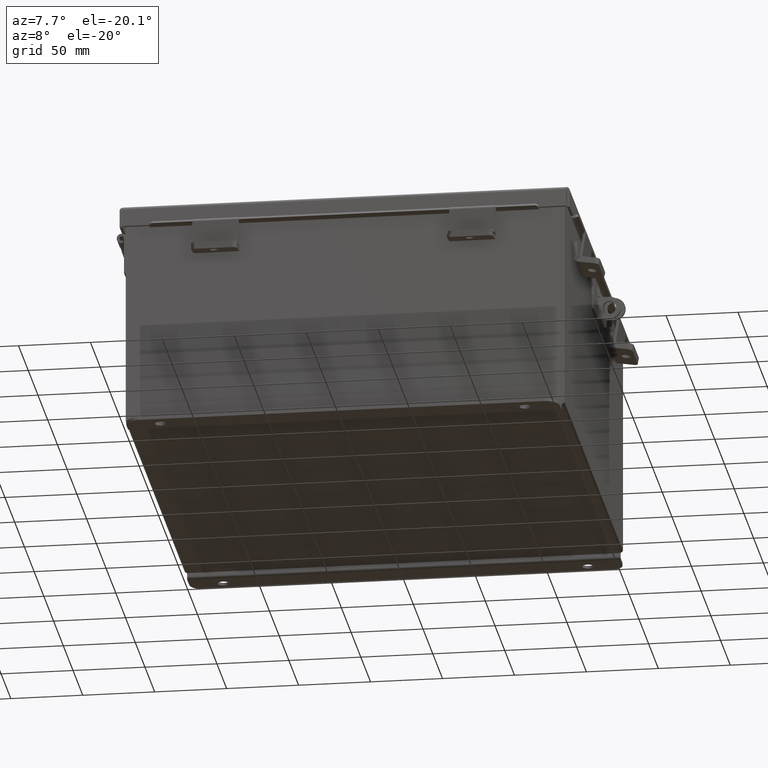
[diagram: clean part render]
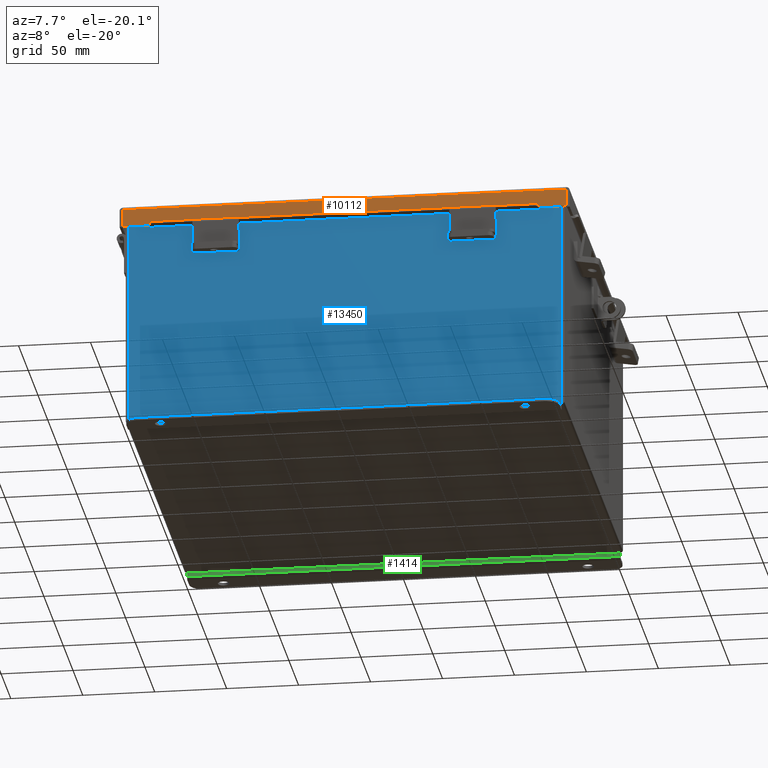
[diagram: same view with three faces highlighted in distinct colors, each labeled with its STEP entity id]
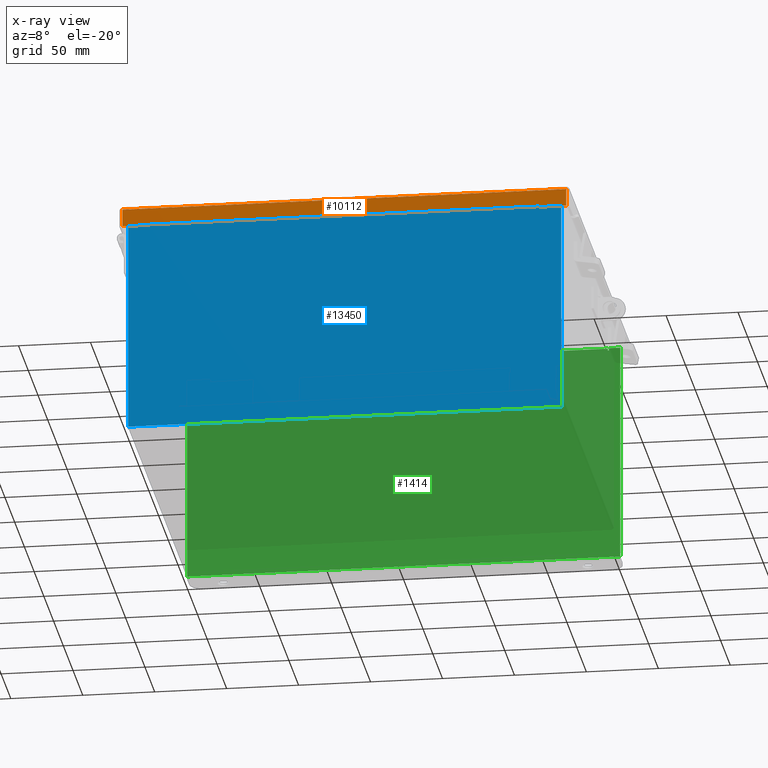
[diagram: x-ray of the same camera — body ghosted, the three highlighted faces saturated]
A machine part, auxiliary view with three faces highlighted in distinct colors.
The next image is the same camera in x-ray (body ghosted, the three faces saturated) — at least one of them is partly hidden behind the body in this view.
Their STEP definitions:

[orange] entity #10112 — the highlighted planar face has unit normal (0, 1, -0).
#125 = EDGE_CURVE ( 'NONE', #9136, #5291, #3240, .T. ) ;
#694 = PLANE ( 'NONE',  #3883 ) ;
#1116 = VECTOR ( 'NONE', #10649, 39.37007874015748100 ) ;
#1562 = DIRECTION ( 'NONE',  ( -1.000000000000000000, 0.0000000000000000000, 5.546899479521349200E-018 ) ) ;
#2277 = CARTESIAN_POINT ( 'NONE',  ( 5.324478932188132100, -6.156250000000002700, 0.4872999999999997900 ) ) ;
#2778 = CARTESIAN_POINT ( 'NONE',  ( 5.324478932188133000, -6.156250000000003600, 0.4717115427318791000 ) ) ;
#3240 = LINE ( 'NONE', #16512, #7323 ) ;
#3883 = AXIS2_PLACEMENT_3D ( 'NONE', #14385, #13070, #4848 ) ;
#4429 = EDGE_CURVE ( 'NONE', #13011, #16090, #17484, .T. ) ;
#4614 = ORIENTED_EDGE ( 'NONE', *, *, #125, .T. ) ;
#4718 = VECTOR ( 'NONE', #16590, 39.37007874015748100 ) ;
#4840 = VECTOR ( 'NONE', #15150, 39.37007874015748100 ) ;
#4848 = DIRECTION ( 'NONE',  ( 0.0000000000000000000, -4.484872552701437000E-015, 1.000000000000000000 ) ) ;
#5145 = LINE ( 'NONE', #2778, #4718 ) ;
#5185 = LINE ( 'NONE', #6574, #1116 ) ;
#5233 = CARTESIAN_POINT ( 'NONE',  ( 5.324478932188133000, -6.156250000000002700, 0.4717115427318791000 ) ) ;
#5291 = VERTEX_POINT ( 'NONE', #2277 ) ;
#5467 = ORIENTED_EDGE ( 'NONE', *, *, #17163, .F. ) ;
#5538 = EDGE_CURVE ( 'NONE', #8407, #5291, #5145, .T. ) ;
#6199 = VECTOR ( 'NONE', #7105, 39.37007874015748100 ) ;
#6258 = CARTESIAN_POINT ( 'NONE',  ( 2.703004116370754100E-018, -6.156250000000002700, 0.4872999999999997900 ) ) ;
#6471 = VECTOR ( 'NONE', #9850, 39.37007874015748100 ) ;
#6574 = CARTESIAN_POINT ( 'NONE',  ( 6.074478932188137400, -6.156250000000000000, -2.787081030857980400E-014 ) ) ;
#6723 = DIRECTION ( 'NONE',  ( 1.000000000000000000, 0.0000000000000000000, 0.0000000000000000000 ) ) ;
#7089 = CARTESIAN_POINT ( 'NONE',  ( -5.324478932188134700, -6.156250000000004400, 0.4872999999999985700 ) ) ;
#7105 = DIRECTION ( 'NONE',  ( -1.000000000000000000, 2.487713722829918300E-032, 1.089533968265403200E-046 ) ) ;
#7323 = VECTOR ( 'NONE', #1562, 39.37007874015748100 ) ;
#7932 = VECTOR ( 'NONE', #6723, 39.37007874015748100 ) ;
#7973 = ORIENTED_EDGE ( 'NONE', *, *, #15308, .F. ) ;
#8322 = VERTEX_POINT ( 'NONE', #11967 ) ;
#8336 = LINE ( 'NONE', #13576, #7932 ) ;
#8407 = VERTEX_POINT ( 'NONE', #5233 ) ;
#8585 = FACE_OUTER_BOUND ( 'NONE', #13466, .T. ) ;
#9136 = VERTEX_POINT ( 'NONE', #17628 ) ;
#9699 = LINE ( 'NONE', #7089, #6471 ) ;
#9785 = EDGE_CURVE ( 'NONE', #8322, #9136, #5185, .T. ) ;
#9849 = LINE ( 'NONE', #15319, #6199 ) ;
#9850 = DIRECTION ( 'NONE',  ( 0.0000000000000000000, 7.009925220121084600E-014, -1.000000000000000000 ) ) ;
#10112 = ADVANCED_FACE ( 'NONE', ( #8585 ), #694, .F. ) ;
#10649 = DIRECTION ( 'NONE',  ( 0.0000000000000000000, -4.484872552701437000E-015, 1.000000000000000000 ) ) ;
#10963 = EDGE_CURVE ( 'NONE', #10975, #8407, #8336, .T. ) ;
#10975 = VERTEX_POINT ( 'NONE', #14980 ) ;
#10977 = CARTESIAN_POINT ( 'NONE',  ( -6.074478932188137400, -6.156250000000000000, -3.350199796867980800E-016 ) ) ;
#11719 = EDGE_CURVE ( 'NONE', #11958, #16090, #12587, .T. ) ;
#11943 = ORIENTED_EDGE ( 'NONE', *, *, #5538, .F. ) ;
#11958 = VERTEX_POINT ( 'NONE', #17017 ) ;
#11967 = CARTESIAN_POINT ( 'NONE',  ( 6.074478932188137400, -6.156250000000000000, 0.01299999999999978100 ) ) ;
#12587 = LINE ( 'NONE', #10977, #4840 ) ;
#13011 = VERTEX_POINT ( 'NONE', #13374 ) ;
#13070 = DIRECTION ( 'NONE',  ( 2.487713722829918300E-032, 1.000000000000000000, 4.484872552701437000E-015 ) ) ;
#13374 = CARTESIAN_POINT ( 'NONE',  ( -5.324478932188134700, -6.156250000000002700, 0.4872999999999997900 ) ) ;
#13466 = EDGE_LOOP ( 'NONE', ( #7973, #14053, #14743, #5467, #15175, #4614, #11943, #15204 ) ) ;
#13576 = CARTESIAN_POINT ( 'NONE',  ( -5.324478932188135600, -6.156250000000003600, 0.4717115427318791000 ) ) ;
#13780 = VECTOR ( 'NONE', #17245, 39.37007874015748100 ) ;
#14053 = ORIENTED_EDGE ( 'NONE', *, *, #4429, .T. ) ;
#14385 = CARTESIAN_POINT ( 'NONE',  ( -1.531498760617168500E-031, -6.156250000000000000, -2.787081030857980400E-014 ) ) ;
#14560 = CARTESIAN_POINT ( 'NONE',  ( -6.074478932188137400, -6.156250000000002700, 0.4872999999999997900 ) ) ;
#14743 = ORIENTED_EDGE ( 'NONE', *, *, #11719, .F. ) ;
#14980 = CARTESIAN_POINT ( 'NONE',  ( -5.324478932188134700, -6.156250000000002700, 0.4717115427318791000 ) ) ;
#15150 = DIRECTION ( 'NONE',  ( -0.0000000000000000000, -4.484872552701437000E-015, 1.000000000000000000 ) ) ;
#15175 = ORIENTED_EDGE ( 'NONE', *, *, #9785, .T. ) ;
#15204 = ORIENTED_EDGE ( 'NONE', *, *, #10963, .F. ) ;
#15308 = EDGE_CURVE ( 'NONE', #13011, #10975, #9699, .T. ) ;
#15319 = CARTESIAN_POINT ( 'NONE',  ( -6.156249999999998200, -6.156250000000000000, 0.01299999999999978100 ) ) ;
#16090 = VERTEX_POINT ( 'NONE', #14560 ) ;
#16512 = CARTESIAN_POINT ( 'NONE',  ( 2.703004116370754100E-018, -6.156250000000002700, 0.4872999999999997900 ) ) ;
#16590 = DIRECTION ( 'NONE',  ( 0.0000000000000000000, 0.0000000000000000000, 1.000000000000000000 ) ) ;
#17017 = CARTESIAN_POINT ( 'NONE',  ( -6.074478932188137400, -6.156250000000000000, 0.01299999999999977400 ) ) ;
#17163 = EDGE_CURVE ( 'NONE', #8322, #11958, #9849, .T. ) ;
#17245 = DIRECTION ( 'NONE',  ( -1.000000000000000000, 0.0000000000000000000, 5.546899479521349200E-018 ) ) ;
#17484 = LINE ( 'NONE', #6258, #13780 ) ;
#17628 = CARTESIAN_POINT ( 'NONE',  ( 6.074478932188137400, -6.156250000000002700, 0.4872999999999997300 ) ) ;

[blue] entity #13450 — the highlighted planar face has unit normal (-0, 1, -0).
#119 = CARTESIAN_POINT ( 'NONE',  ( 5.925299999999999100, 8.741913579725642300E-015, 2.925300000000000000 ) ) ;
#359 = ORIENTED_EDGE ( 'NONE', *, *, #12251, .F. ) ;
#422 = CIRCLE ( 'NONE', #13354, 0.01867500000000003900 ) ;
#578 = CARTESIAN_POINT ( 'NONE',  ( -5.619650000000000000, 0.0000000000000000000, 2.925300000000000000 ) ) ;
#597 = VERTEX_POINT ( 'NONE', #7077 ) ;
#645 = VECTOR ( 'NONE', #7205, 39.37007874015748100 ) ;
#746 = VERTEX_POINT ( 'NONE', #2565 ) ;
#967 = LINE ( 'NONE', #11525, #15168 ) ;
#1083 = LINE ( 'NONE', #16862, #645 ) ;
#1205 = CARTESIAN_POINT ( 'NONE',  ( 5.582299999999999200, 8.741913579725642300E-015, 2.912299999999998800 ) ) ;
#1484 = CARTESIAN_POINT ( 'NONE',  ( 5.582299999999999200, 8.741913579725642300E-015, 2.874949999999998800 ) ) ;
#1546 = VECTOR ( 'NONE', #12695, 39.37007874015748100 ) ;
#1583 = ORIENTED_EDGE ( 'NONE', *, *, #8744, .T. ) ;
#1877 = VERTEX_POINT ( 'NONE', #13345 ) ;
#2127 = VECTOR ( 'NONE', #10024, 39.37007874015748100 ) ;
#2171 = VERTEX_POINT ( 'NONE', #1484 ) ;
#2226 = CARTESIAN_POINT ( 'NONE',  ( 5.582299999999990300, 0.0000000000000000000, 0.0000000000000000000 ) ) ;
#2421 = DIRECTION ( 'NONE',  ( 4.910036603141682400E-031, 1.000000000000000000, -0.0000000000000000000 ) ) ;
#2565 = CARTESIAN_POINT ( 'NONE',  ( -5.925300000000001800, 0.0000000000000000000, 2.925300000000000000 ) ) ;
#2768 = VECTOR ( 'NONE', #15976, 39.37007874015748100 ) ;
#3021 = VERTEX_POINT ( 'NONE', #16956 ) ;
#3145 = AXIS2_PLACEMENT_3D ( 'NONE', #4765, #17183, #8900 ) ;
#4422 = EDGE_LOOP ( 'NONE', ( #12316, #11736, #5808, #10025, #15266, #359, #17826, #12576, #4609, #10297, #1583, #14912 ) ) ;
#4558 = DIRECTION ( 'NONE',  ( 0.0000000000000000000, 0.0000000000000000000, 1.000000000000000000 ) ) ;
#4609 = ORIENTED_EDGE ( 'NONE', *, *, #4699, .T. ) ;
#4699 = EDGE_CURVE ( 'NONE', #597, #16914, #16823, .T. ) ;
#4765 = CARTESIAN_POINT ( 'NONE',  ( 0.0000000000000000000, 0.0000000000000000000, 0.0000000000000000000 ) ) ;
#5021 = VERTEX_POINT ( 'NONE', #11168 ) ;
#5195 = LINE ( 'NONE', #7163, #1546 ) ;
#5401 = LINE ( 'NONE', #9222, #15092 ) ;
#5717 = EDGE_CURVE ( 'NONE', #5021, #17339, #16375, .T. ) ;
#5808 = ORIENTED_EDGE ( 'NONE', *, *, #6573, .F. ) ;
#5857 = LINE ( 'NONE', #6276, #12750 ) ;
#6237 = VECTOR ( 'NONE', #11476, 39.37007874015748100 ) ;
#6276 = CARTESIAN_POINT ( 'NONE',  ( -5.925300000000001800, -8.741913579725642300E-015, -3.099299999999999900 ) ) ;
#6573 = EDGE_CURVE ( 'NONE', #11004, #3021, #11135, .T. ) ;
#6976 = VERTEX_POINT ( 'NONE', #1205 ) ;
#7077 = CARTESIAN_POINT ( 'NONE',  ( 5.925299999999999100, 8.741913579725642300E-015, 2.925300000000000000 ) ) ;
#7163 = CARTESIAN_POINT ( 'NONE',  ( -5.925300000000001800, 0.0000000000000000000, 2.925300000000000000 ) ) ;
#7205 = DIRECTION ( 'NONE',  ( 1.000000000000000000, 4.910036603141682400E-031, 0.0000000000000000000 ) ) ;
#7504 = DIRECTION ( 'NONE',  ( 0.0000000000000000000, 0.0000000000000000000, -1.000000000000000000 ) ) ;
#7507 = PLANE ( 'NONE',  #3145 ) ;
#8093 = DIRECTION ( 'NONE',  ( 4.910036603141682400E-031, 1.000000000000000000, -0.0000000000000000000 ) ) ;
#8189 = LINE ( 'NONE', #12808, #11872 ) ;
#8744 = EDGE_CURVE ( 'NONE', #10958, #746, #8189, .T. ) ;
#8900 = DIRECTION ( 'NONE',  ( 0.0000000000000000000, 0.0000000000000000000, -1.000000000000000000 ) ) ;
#9077 = CARTESIAN_POINT ( 'NONE',  ( 5.619650000000000000, 8.741913579725642300E-015, 2.925300000000000000 ) ) ;
#9222 = CARTESIAN_POINT ( 'NONE',  ( 5.619649999999928100, 0.0000000000000000000, -1.262113773072889600E-013 ) ) ;
#9487 = FACE_OUTER_BOUND ( 'NONE', #4422, .T. ) ;
#10024 = DIRECTION ( 'NONE',  ( 0.0000000000000000000, 0.0000000000000000000, 1.000000000000000000 ) ) ;
#10025 = ORIENTED_EDGE ( 'NONE', *, *, #11985, .T. ) ;
#10218 = VERTEX_POINT ( 'NONE', #9077 ) ;
#10297 = ORIENTED_EDGE ( 'NONE', *, *, #12887, .F. ) ;
#10439 = DIRECTION ( 'NONE',  ( 1.000000000000000000, 4.910036603141682400E-031, -0.0000000000000000000 ) ) ;
#10632 = DIRECTION ( 'NONE',  ( -2.170286390199955400E-014, -7.888609052210118100E-031, -1.000000000000000000 ) ) ;
#10651 = CARTESIAN_POINT ( 'NONE',  ( 5.600974999999998300, 8.741913579725642300E-015, 2.874949999999998800 ) ) ;
#10958 = VERTEX_POINT ( 'NONE', #16329 ) ;
#11004 = VERTEX_POINT ( 'NONE', #16455 ) ;
#11135 = LINE ( 'NONE', #15805, #14792 ) ;
#11168 = CARTESIAN_POINT ( 'NONE',  ( -5.619650000000000000, 0.0000000000000000000, 2.874949999999998800 ) ) ;
#11476 = DIRECTION ( 'NONE',  ( 0.0000000000000000000, 0.0000000000000000000, -1.000000000000000000 ) ) ;
#11525 = CARTESIAN_POINT ( 'NONE',  ( -5.582300000000000900, 2.185478394931410600E-015, 2.912299999999998800 ) ) ;
#11736 = ORIENTED_EDGE ( 'NONE', *, *, #16283, .F. ) ;
#11872 = VECTOR ( 'NONE', #4558, 39.37007874015748100 ) ;
#11985 = EDGE_CURVE ( 'NONE', #11004, #6976, #967, .T. ) ;
#12027 = DIRECTION ( 'NONE',  ( 0.0000000000000000000, 0.0000000000000000000, -1.000000000000000000 ) ) ;
#12251 = EDGE_CURVE ( 'NONE', #1877, #2171, #15830, .T. ) ;
#12316 = ORIENTED_EDGE ( 'NONE', *, *, #5717, .F. ) ;
#12576 = ORIENTED_EDGE ( 'NONE', *, *, #16558, .T. ) ;
#12695 = DIRECTION ( 'NONE',  ( 1.000000000000000000, 4.910036603141682400E-031, 0.0000000000000000000 ) ) ;
#12750 = VECTOR ( 'NONE', #10439, 39.37007874015748100 ) ;
#12808 = CARTESIAN_POINT ( 'NONE',  ( -5.925300000000001800, 0.0000000000000000000, 2.925300000000000000 ) ) ;
#12887 = EDGE_CURVE ( 'NONE', #10958, #16914, #5857, .T. ) ;
#13345 = CARTESIAN_POINT ( 'NONE',  ( 5.619649999999998300, 8.741913579725642300E-015, 2.874949999999998800 ) ) ;
#13354 = AXIS2_PLACEMENT_3D ( 'NONE', #16397, #8093, #17781 ) ;
#13450 = ADVANCED_FACE ( 'NONE', ( #9487 ), #7507, .F. ) ;
#14792 = VECTOR ( 'NONE', #7504, 39.37007874015748100 ) ;
#14912 = ORIENTED_EDGE ( 'NONE', *, *, #15368, .T. ) ;
#15092 = VECTOR ( 'NONE', #10632, 39.37007874015748100 ) ;
#15168 = VECTOR ( 'NONE', #15688, 39.37007874015748100 ) ;
#15266 = ORIENTED_EDGE ( 'NONE', *, *, #17450, .F. ) ;
#15368 = EDGE_CURVE ( 'NONE', #746, #17339, #5195, .T. ) ;
#15529 = CARTESIAN_POINT ( 'NONE',  ( -5.619650000000008900, 0.0000000000000000000, 0.0000000000000000000 ) ) ;
#15681 = EDGE_CURVE ( 'NONE', #10218, #1877, #5401, .T. ) ;
#15688 = DIRECTION ( 'NONE',  ( 1.000000000000000000, 4.910036603141682400E-031, -0.0000000000000000000 ) ) ;
#15695 = AXIS2_PLACEMENT_3D ( 'NONE', #10651, #2421, #12027 ) ;
#15805 = CARTESIAN_POINT ( 'NONE',  ( -5.582300000000008900, 0.0000000000000000000, 0.0000000000000000000 ) ) ;
#15830 = CIRCLE ( 'NONE', #15695, 0.01867500000000003900 ) ;
#15976 = DIRECTION ( 'NONE',  ( 0.0000000000000000000, 0.0000000000000000000, 1.000000000000000000 ) ) ;
#16283 = EDGE_CURVE ( 'NONE', #3021, #5021, #422, .T. ) ;
#16329 = CARTESIAN_POINT ( 'NONE',  ( -5.925300000000000000, -8.741913579725642300E-015, -3.099299999999999900 ) ) ;
#16375 = LINE ( 'NONE', #15529, #2127 ) ;
#16397 = CARTESIAN_POINT ( 'NONE',  ( -5.600975000000000000, 0.0000000000000000000, 2.874949999999998800 ) ) ;
#16455 = CARTESIAN_POINT ( 'NONE',  ( -5.582300000000000000, 2.185478394931410600E-015, 2.912299999999998800 ) ) ;
#16558 = EDGE_CURVE ( 'NONE', #10218, #597, #1083, .T. ) ;
#16823 = LINE ( 'NONE', #119, #6237 ) ;
#16862 = CARTESIAN_POINT ( 'NONE',  ( -5.925300000000001800, 0.0000000000000000000, 2.925300000000000000 ) ) ;
#16914 = VERTEX_POINT ( 'NONE', #17575 ) ;
#16956 = CARTESIAN_POINT ( 'NONE',  ( -5.582300000000000000, 0.0000000000000000000, 2.874949999999998800 ) ) ;
#16993 = LINE ( 'NONE', #2226, #2768 ) ;
#17183 = DIRECTION ( 'NONE',  ( -4.910036603141682400E-031, -1.000000000000000000, -0.0000000000000000000 ) ) ;
#17339 = VERTEX_POINT ( 'NONE', #578 ) ;
#17450 = EDGE_CURVE ( 'NONE', #2171, #6976, #16993, .T. ) ;
#17575 = CARTESIAN_POINT ( 'NONE',  ( 5.925299999999999100, 0.0000000000000000000, -3.099300000000004400 ) ) ;
#17781 = DIRECTION ( 'NONE',  ( 0.0000000000000000000, 0.0000000000000000000, -1.000000000000000000 ) ) ;
#17826 = ORIENTED_EDGE ( 'NONE', *, *, #15681, .F. ) ;

[green] entity #1414 — the highlighted planar face has unit normal (0, -1, 0).
#201 = CARTESIAN_POINT ( 'NONE',  ( 5.925299999999999100, -0.07470000000000015500, -3.099299999999999900 ) ) ;
#350 = AXIS2_PLACEMENT_3D ( 'NONE', #13385, #5144, #14769 ) ;
#541 = DIRECTION ( 'NONE',  ( 0.0000000000000000000, 0.0000000000000000000, -1.000000000000000000 ) ) ;
#635 = ORIENTED_EDGE ( 'NONE', *, *, #11384, .F. ) ;
#968 = CARTESIAN_POINT ( 'NONE',  ( 5.619650000000000000, -0.07470000000000015500, 2.925300000000000500 ) ) ;
#1035 = VERTEX_POINT ( 'NONE', #201 ) ;
#1236 = EDGE_LOOP ( 'NONE', ( #2899, #12997, #6693, #11510, #10569, #635, #13231, #14527, #3593, #6473, #8402, #12168 ) ) ;
#1300 = LINE ( 'NONE', #16257, #8565 ) ;
#1414 = ADVANCED_FACE ( 'NONE', ( #10523 ), #13732, .T. ) ;
#1985 = VERTEX_POINT ( 'NONE', #15741 ) ;
#2003 = EDGE_CURVE ( 'NONE', #12430, #6487, #14814, .T. ) ;
#2037 = CARTESIAN_POINT ( 'NONE',  ( -5.582300000000000000, -0.07470000000000015500, 2.874949999999999200 ) ) ;
#2097 = VECTOR ( 'NONE', #2340, 39.37007874015748100 ) ;
#2340 = DIRECTION ( 'NONE',  ( 0.0000000000000000000, 0.0000000000000000000, -1.000000000000000000 ) ) ;
#2370 = VECTOR ( 'NONE', #15615, 39.37007874015748100 ) ;
#2537 = LINE ( 'NONE', #4597, #6181 ) ;
#2647 = EDGE_CURVE ( 'NONE', #4793, #5225, #2537, .T. ) ;
#2899 = ORIENTED_EDGE ( 'NONE', *, *, #16882, .F. ) ;
#2926 = CARTESIAN_POINT ( 'NONE',  ( 5.582299999999999200, -0.07470000000000015500, 2.874949999999999200 ) ) ;
#3249 = CARTESIAN_POINT ( 'NONE',  ( -5.925300000000001800, -0.07470000000000015500, 2.925300000000000500 ) ) ;
#3262 = VECTOR ( 'NONE', #8272, 39.37007874015748100 ) ;
#3331 = DIRECTION ( 'NONE',  ( -0.0000000000000000000, -0.0000000000000000000, 1.000000000000000000 ) ) ;
#3593 = ORIENTED_EDGE ( 'NONE', *, *, #15477, .F. ) ;
#3884 = CIRCLE ( 'NONE', #12206, 0.01867500000000003900 ) ;
#4050 = DIRECTION ( 'NONE',  ( 2.170286390199955400E-014, -2.272018564740578300E-014, 1.000000000000000000 ) ) ;
#4477 = EDGE_CURVE ( 'NONE', #12430, #1035, #9689, .T. ) ;
#4550 = CARTESIAN_POINT ( 'NONE',  ( -5.619650000000000000, -0.07470000000000015500, 2.874949999999999200 ) ) ;
#4556 = VERTEX_POINT ( 'NONE', #4550 ) ;
#4597 = CARTESIAN_POINT ( 'NONE',  ( 5.619649999999999100, -0.07469999999999797600, 2.874949999999999200 ) ) ;
#4793 = VERTEX_POINT ( 'NONE', #15272 ) ;
#4876 = DIRECTION ( 'NONE',  ( 1.000000000000000000, -0.0000000000000000000, -0.0000000000000000000 ) ) ;
#5131 = LINE ( 'NONE', #6903, #9189 ) ;
#5144 = DIRECTION ( 'NONE',  ( 0.0000000000000000000, -1.000000000000000000, 0.0000000000000000000 ) ) ;
#5225 = VERTEX_POINT ( 'NONE', #968 ) ;
#5332 = DIRECTION ( 'NONE',  ( 0.0000000000000000000, 2.272018564740578300E-014, -1.000000000000000000 ) ) ;
#5333 = EDGE_CURVE ( 'NONE', #14071, #4556, #1300, .T. ) ;
#5979 = EDGE_CURVE ( 'NONE', #5225, #7064, #5131, .T. ) ;
#6029 = LINE ( 'NONE', #14174, #2370 ) ;
#6181 = VECTOR ( 'NONE', #4050, 39.37007874015748100 ) ;
#6473 = ORIENTED_EDGE ( 'NONE', *, *, #6711, .F. ) ;
#6487 = VERTEX_POINT ( 'NONE', #3249 ) ;
#6693 = ORIENTED_EDGE ( 'NONE', *, *, #16708, .F. ) ;
#6711 = EDGE_CURVE ( 'NONE', #15149, #7195, #13073, .T. ) ;
#6903 = CARTESIAN_POINT ( 'NONE',  ( -5.925300000000001800, -0.07470000000000015500, 2.925300000000000500 ) ) ;
#7064 = VERTEX_POINT ( 'NONE', #15141 ) ;
#7195 = VERTEX_POINT ( 'NONE', #2926 ) ;
#7440 = CARTESIAN_POINT ( 'NONE',  ( -5.619650000000000000, -0.07470000000000015500, 2.925300000000000500 ) ) ;
#7447 = DIRECTION ( 'NONE',  ( 0.0000000000000000000, -1.000000000000000000, 0.0000000000000000000 ) ) ;
#7490 = VECTOR ( 'NONE', #3331, 39.37007874015748100 ) ;
#7950 = DIRECTION ( 'NONE',  ( 0.0000000000000000000, -0.0000000000000000000, -1.000000000000000000 ) ) ;
#8117 = CARTESIAN_POINT ( 'NONE',  ( 5.582299999999999200, -0.07470000000000015500, 2.912299999999998300 ) ) ;
#8272 = DIRECTION ( 'NONE',  ( 0.0000000000000000000, 0.0000000000000000000, 1.000000000000000000 ) ) ;
#8312 = EDGE_CURVE ( 'NONE', #16680, #1985, #17503, .T. ) ;
#8402 = ORIENTED_EDGE ( 'NONE', *, *, #15871, .F. ) ;
#8565 = VECTOR ( 'NONE', #5332, 39.37007874015748100 ) ;
#8927 = CARTESIAN_POINT ( 'NONE',  ( -5.925300000000001800, -0.07470000000000015500, 2.925300000000000500 ) ) ;
#9189 = VECTOR ( 'NONE', #16573, 39.37007874015748100 ) ;
#9439 = LINE ( 'NONE', #8927, #12678 ) ;
#9569 = LINE ( 'NONE', #12909, #13237 ) ;
#9689 = LINE ( 'NONE', #15710, #16633 ) ;
#10523 = FACE_OUTER_BOUND ( 'NONE', #1236, .T. ) ;
#10567 = CARTESIAN_POINT ( 'NONE',  ( 5.582299999999999200, -0.07469999999999797600, 2.912299999999998300 ) ) ;
#10569 = ORIENTED_EDGE ( 'NONE', *, *, #4477, .T. ) ;
#11384 = EDGE_CURVE ( 'NONE', #7064, #1035, #9569, .T. ) ;
#11510 = ORIENTED_EDGE ( 'NONE', *, *, #2003, .F. ) ;
#11590 = DIRECTION ( 'NONE',  ( 0.0000000000000000000, -1.000000000000000000, 0.0000000000000000000 ) ) ;
#12168 = ORIENTED_EDGE ( 'NONE', *, *, #8312, .F. ) ;
#12206 = AXIS2_PLACEMENT_3D ( 'NONE', #15724, #7447, #17126 ) ;
#12309 = CIRCLE ( 'NONE', #350, 0.01867500000000003900 ) ;
#12430 = VERTEX_POINT ( 'NONE', #13721 ) ;
#12678 = VECTOR ( 'NONE', #15845, 39.37007874015748100 ) ;
#12909 = CARTESIAN_POINT ( 'NONE',  ( 5.925299999999999100, -0.07470000000000015500, 2.925300000000000500 ) ) ;
#12997 = ORIENTED_EDGE ( 'NONE', *, *, #5333, .F. ) ;
#13073 = LINE ( 'NONE', #10567, #2097 ) ;
#13231 = ORIENTED_EDGE ( 'NONE', *, *, #5979, .F. ) ;
#13237 = VECTOR ( 'NONE', #541, 39.37007874015748100 ) ;
#13385 = CARTESIAN_POINT ( 'NONE',  ( -5.600975000000000000, -0.07469999999999797600, 2.874949999999999200 ) ) ;
#13721 = CARTESIAN_POINT ( 'NONE',  ( -5.925300000000000000, -0.07470000000000015500, -3.099299999999999900 ) ) ;
#13732 = PLANE ( 'NONE',  #17256 ) ;
#14071 = VERTEX_POINT ( 'NONE', #7440 ) ;
#14174 = CARTESIAN_POINT ( 'NONE',  ( -5.582300000000000900, -0.07469999999999797600, 2.912299999999998300 ) ) ;
#14342 = CARTESIAN_POINT ( 'NONE',  ( 0.0000000000000000000, -0.07470000000000015500, 0.0000000000000000000 ) ) ;
#14527 = ORIENTED_EDGE ( 'NONE', *, *, #2647, .F. ) ;
#14769 = DIRECTION ( 'NONE',  ( 0.0000000000000000000, 0.0000000000000000000, -1.000000000000000000 ) ) ;
#14814 = LINE ( 'NONE', #16608, #7490 ) ;
#15141 = CARTESIAN_POINT ( 'NONE',  ( 5.925299999999999100, -0.07470000000000015500, 2.925300000000000500 ) ) ;
#15149 = VERTEX_POINT ( 'NONE', #8117 ) ;
#15218 = CARTESIAN_POINT ( 'NONE',  ( -5.582300000000000000, -0.07469999999999797600, 2.874949999999999200 ) ) ;
#15272 = CARTESIAN_POINT ( 'NONE',  ( 5.619649999999999100, -0.07470000000000015500, 2.874949999999999200 ) ) ;
#15477 = EDGE_CURVE ( 'NONE', #7195, #4793, #3884, .T. ) ;
#15615 = DIRECTION ( 'NONE',  ( 1.000000000000000000, 0.0000000000000000000, 0.0000000000000000000 ) ) ;
#15710 = CARTESIAN_POINT ( 'NONE',  ( -5.925300000000001800, -0.07470000000000015500, -3.099299999999999900 ) ) ;
#15724 = CARTESIAN_POINT ( 'NONE',  ( 5.600974999999998300, -0.07469999999999797600, 2.874949999999999200 ) ) ;
#15741 = CARTESIAN_POINT ( 'NONE',  ( -5.582300000000000000, -0.07470000000000015500, 2.912299999999998300 ) ) ;
#15845 = DIRECTION ( 'NONE',  ( 1.000000000000000000, 0.0000000000000000000, 0.0000000000000000000 ) ) ;
#15871 = EDGE_CURVE ( 'NONE', #1985, #15149, #6029, .T. ) ;
#16257 = CARTESIAN_POINT ( 'NONE',  ( -5.619650000000000000, -0.07469999999999907300, 2.925300000000000500 ) ) ;
#16573 = DIRECTION ( 'NONE',  ( 1.000000000000000000, 0.0000000000000000000, 0.0000000000000000000 ) ) ;
#16608 = CARTESIAN_POINT ( 'NONE',  ( -5.925300000000001800, -0.07470000000000015500, 2.925300000000000500 ) ) ;
#16633 = VECTOR ( 'NONE', #4876, 39.37007874015748100 ) ;
#16680 = VERTEX_POINT ( 'NONE', #2037 ) ;
#16708 = EDGE_CURVE ( 'NONE', #6487, #14071, #9439, .T. ) ;
#16882 = EDGE_CURVE ( 'NONE', #4556, #16680, #12309, .T. ) ;
#17126 = DIRECTION ( 'NONE',  ( 0.0000000000000000000, 0.0000000000000000000, -1.000000000000000000 ) ) ;
#17256 = AXIS2_PLACEMENT_3D ( 'NONE', #14342, #11590, #7950 ) ;
#17503 = LINE ( 'NONE', #15218, #3262 ) ;